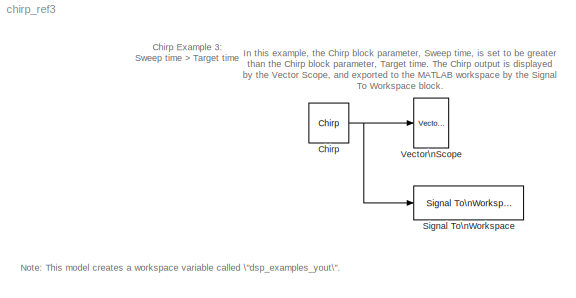
MODEL chirp_ref3
KIND model
CONFIG AbsTol = auto
CONFIG FixedStep = auto
CONFIG MaxStep = auto
CONFIG MinStep = auto
CONFIG RelTol = 1e-3
CONFIG Solver = FixedStepDiscrete
CONFIG SolverMode = Auto
CONFIG StartTime = 0.0
CONFIG StopTime = 5
BLOCK [Reference] Chirp  REF=dspsrcs4/Chirp
  Ports = [0, 1]
  SourceBlock = dspsrcs4/Chirp
  SourceType = Chirp
  Ts = 1/400
  Tsweep = 1.5
  datatype = Double
  f0 = 0
  f1 = 25
  mode = Unidirectional
  phase = 0
  spf = 400
  sweep = Linear
  t1 = 1
BLOCK [Reference] Signal To\nWorkspace  REF=dspsnks4/Signal To\nWorkspace
  Decimation = 1
  FrameMode = Concatenate frames (2-D array)
  MaxDataPoints = inf
  Ports = [1]
  SourceBlock = dspsnks4/Signal To\nWorkspace
  SourceType = Signal To Workspace
  VariableName = dsp_examples_yout
BLOCK [Reference] Vector\nScope  REF=dspsnks4/Vector\nScope
  AxisGrid = on
  AxisLegend = off
  AxisProperties = off
  AxisZoom = off
  DisplayProperties = off
  Domain = Time
  FigPos = [720 450 650 320]
  FrameNumber = on
  HorizSpan = 6
  InheritXIncr = on
  LineProperties = off
  Memory = off
  OpenScopeAtSimStart = on
  OpenScopeImmediately = off
  Ports = [1]
  ScopeProperties = on
  SourceBlock = dspsnks4/Vector\nScope
  SourceType = Vector Scope
  XIncr = 1
  XLabel = Time
  XRange = [0...Fs/2]
  XUnits = Hertz
  YLabel = Amplitude
  YMax = 10
  YMin = -10
  YUnits = dB
ANNOTATION (root): Chirp Example 3:\nSweep time > Target time
ANNOTATION (root): In this example, the Chirp block parameter, Sweep time, is set to be greater\nthan the Chirp block parameter, Target time. The Chirp output is displayed\nby the Vector Scope, and exported to the MATLAB workspace by the Signal\nTo Workspace block.
ANNOTATION (root): Note: This model creates a workspace variable called \"dsp_examples_yout\".
NET Chirp:1 -> Signal To\nWorkspace:1, Vector\nScope:1
note: NET lines group one-source signal fan-out (src -> all destinations, sorted); 1:1 wires keep LINE
